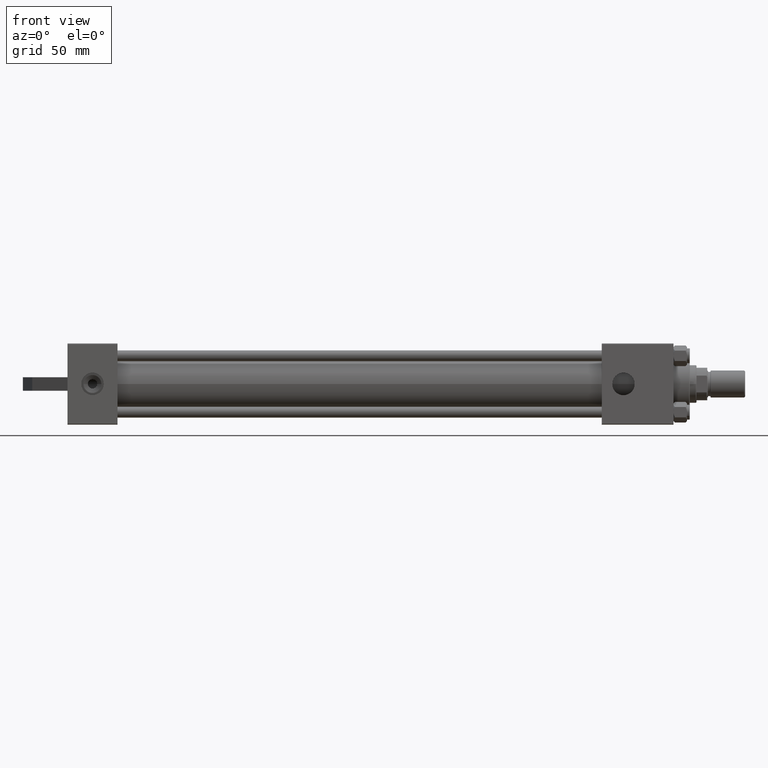
[diagram: clean part render]
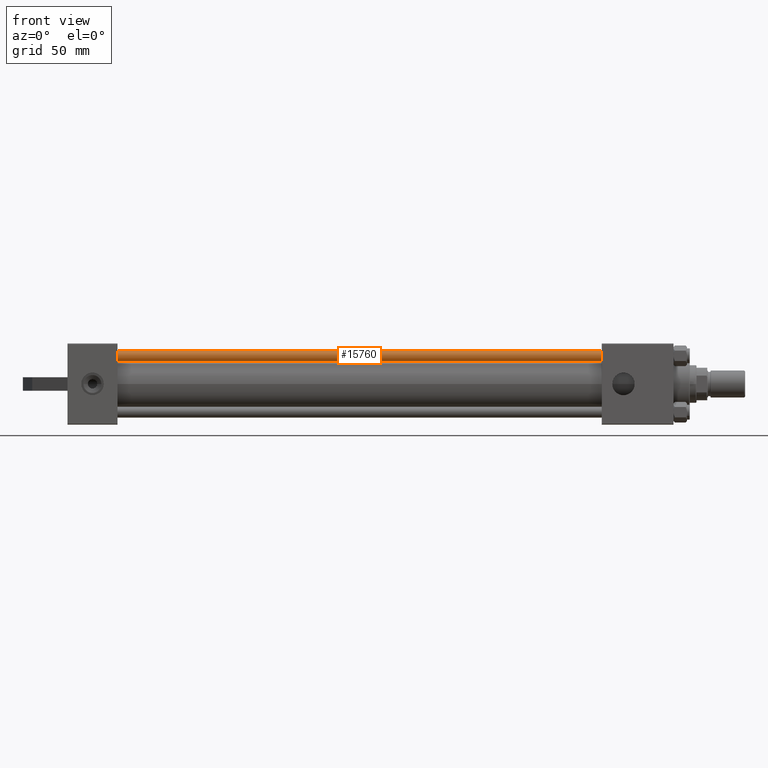
[diagram: same view with one face highlighted and labeled with its STEP entity id]
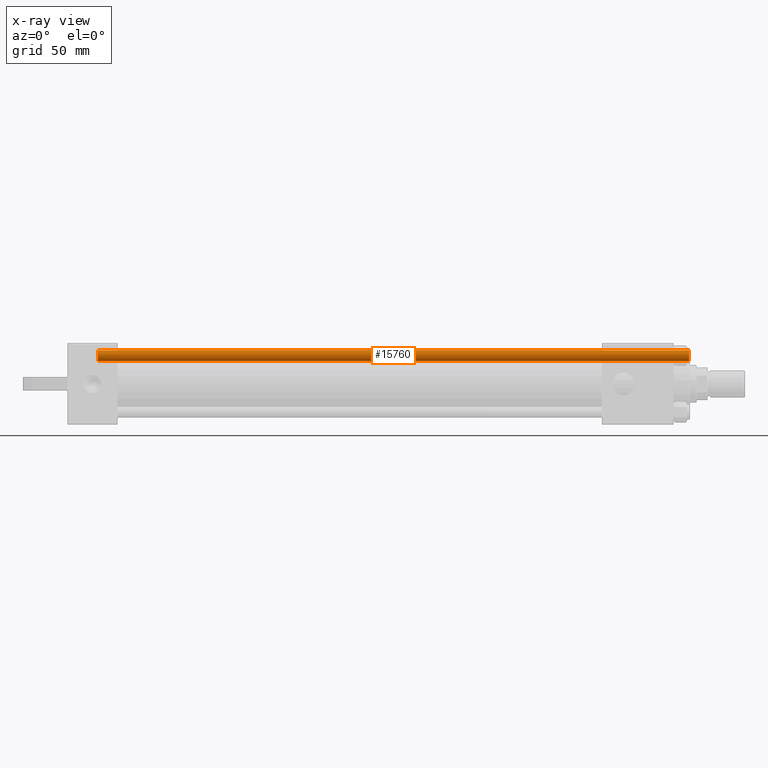
[diagram: x-ray of the same camera — body ghosted, the highlighted face saturated]
A machine part, front view. The second image highlights one B-rep face of the part: STEP entity #15760.
The next image is the same camera in x-ray: the body ghosted, the highlighted face saturated — about 0% of this face is hidden behind the body in this view.
In plain terms, the highlighted cylindrical surface (edge-blend (fillet) strip) has radius 4 mm, axis along (1, 0, 0).
Its self-contained STEP definition (entity closure, byte-faithful):
#977 = CIRCLE ( 'NONE', #10738, 4.000000000000000000 ) ;
#1709 = CYLINDRICAL_SURFACE ( 'NONE', #6982, 4.000000000000000000 ) ;
#2343 = DIRECTION ( 'NONE',  ( 1.000000000000000000, 0.000000000000000000, 0.000000000000000000 ) ) ;
#2400 = CARTESIAN_POINT ( 'NONE',  ( 0.000000000000000000, 0.000000000000000000, 438.0000000000000000 ) ) ;
#2936 = AXIS2_PLACEMENT_3D ( 'NONE', #9878, #6342, #2343 ) ;
#3644 = VECTOR ( 'NONE', #46559, 1000.000000000000000 ) ;
#6342 = DIRECTION ( 'NONE',  ( 0.000000000000000000, 0.000000000000000000, -1.000000000000000000 ) ) ;
#6411 = CARTESIAN_POINT ( 'NONE',  ( 0.000000000000000000, 0.000000000000000000, 0.5000000000000559552 ) ) ;
#6982 = AXIS2_PLACEMENT_3D ( 'NONE', #2400, #27121, #16751 ) ;
#7341 = CARTESIAN_POINT ( 'NONE',  ( -4.000000000000000000, 0.000000000000000000, 438.0000000000000000 ) ) ;
#8369 = VERTEX_POINT ( 'NONE', #31547 ) ;
#9878 = CARTESIAN_POINT ( 'NONE',  ( 0.000000000000000000, 0.000000000000000000, 437.5000000000000568 ) ) ;
#10738 = AXIS2_PLACEMENT_3D ( 'NONE', #6411, #12774, #20059 ) ;
#11028 = CARTESIAN_POINT ( 'NONE',  ( 4.000000000000000000, 4.898587196589412829E-16, 438.0000000000000000 ) ) ;
#11103 = DIRECTION ( 'NONE',  ( -0.000000000000000000, -0.000000000000000000, -1.000000000000000000 ) ) ;
#12769 = FACE_OUTER_BOUND ( 'NONE', #30508, .T. ) ;
#12774 = DIRECTION ( 'NONE',  ( -0.000000000000000000, -0.000000000000000000, 1.000000000000000000 ) ) ;
#13453 = CIRCLE ( 'NONE', #2936, 4.000000000000000000 ) ;
#14415 = EDGE_CURVE ( 'NONE', #34034, #17143, #13453, .T. ) ;
#15021 = CARTESIAN_POINT ( 'NONE',  ( 4.000000000000000000, 4.898587196589412829E-16, 437.5000000000000568 ) ) ;
#15760 = ADVANCED_FACE ( 'NONE', ( #12769 ), #1709, .T. ) ;
#16264 = ORIENTED_EDGE ( 'NONE', *, *, #44529, .F. ) ;
#16564 = EDGE_CURVE ( 'NONE', #18746, #8369, #977, .T. ) ;
#16751 = DIRECTION ( 'NONE',  ( -1.000000000000000000, 0.000000000000000000, 0.000000000000000000 ) ) ;
#17143 = VERTEX_POINT ( 'NONE', #15021 ) ;
#18746 = VERTEX_POINT ( 'NONE', #23381 ) ;
#20059 = DIRECTION ( 'NONE',  ( 1.000000000000000000, 0.000000000000000000, 0.000000000000000000 ) ) ;
#21587 = VECTOR ( 'NONE', #11103, 1000.000000000000000 ) ;
#23381 = CARTESIAN_POINT ( 'NONE',  ( 4.000000000000000000, 4.898587196589412829E-16, 0.5000000000000559552 ) ) ;
#27121 = DIRECTION ( 'NONE',  ( -0.000000000000000000, -0.000000000000000000, -1.000000000000000000 ) ) ;
#29059 = CARTESIAN_POINT ( 'NONE',  ( -4.000000000000000000, 0.000000000000000000, 437.5000000000000568 ) ) ;
#30508 = EDGE_LOOP ( 'NONE', ( #34031, #38589, #45369, #16264 ) ) ;
#31547 = CARTESIAN_POINT ( 'NONE',  ( -4.000000000000000000, 0.000000000000000000, 0.5000000000000559552 ) ) ;
#34031 = ORIENTED_EDGE ( 'NONE', *, *, #14415, .T. ) ;
#34034 = VERTEX_POINT ( 'NONE', #29059 ) ;
#36881 = EDGE_CURVE ( 'NONE', #17143, #18746, #43254, .T. ) ;
#38589 = ORIENTED_EDGE ( 'NONE', *, *, #36881, .T. ) ;
#43254 = LINE ( 'NONE', #11028, #3644 ) ;
#43326 = LINE ( 'NONE', #7341, #21587 ) ;
#44529 = EDGE_CURVE ( 'NONE', #34034, #8369, #43326, .T. ) ;
#45369 = ORIENTED_EDGE ( 'NONE', *, *, #16564, .T. ) ;
#46559 = DIRECTION ( 'NONE',  ( -0.000000000000000000, -0.000000000000000000, -1.000000000000000000 ) ) ;